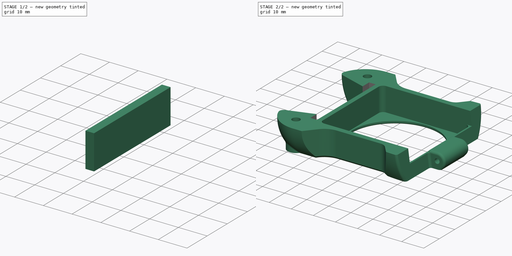
[diagram: build sequence overview — one tinted view per stage of 2, left to right]
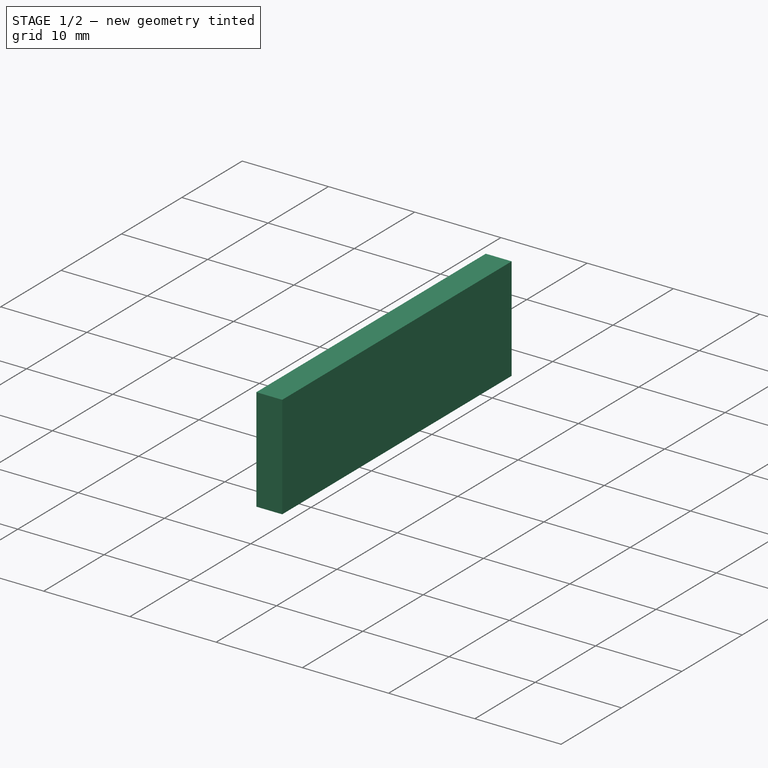
[diagram: stage 1 of 2 — iso view after this stage's code; geometry added in this stage tinted green]
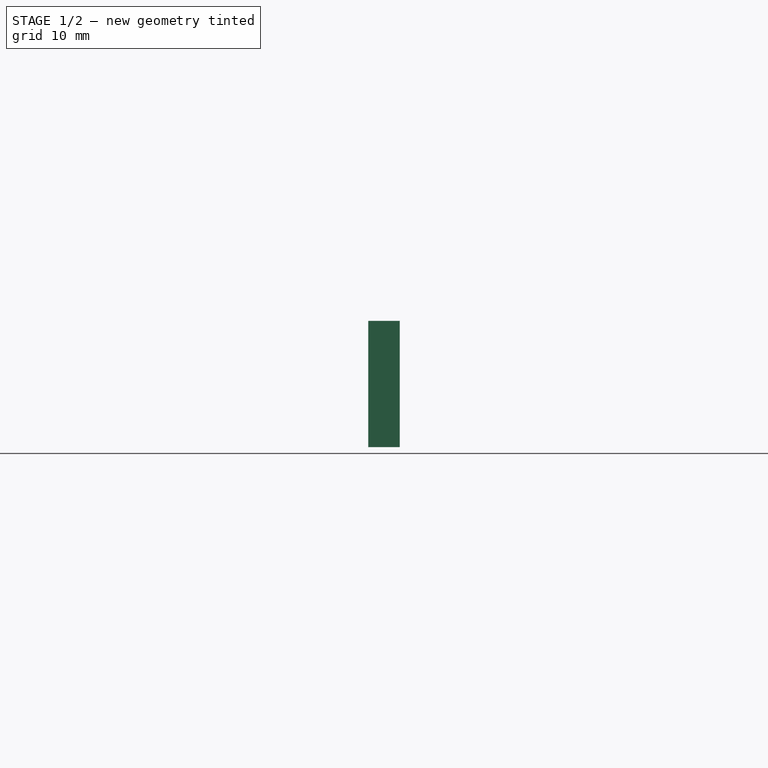
[diagram: stage 1 of 2 — front view after this stage's code; geometry added in this stage tinted green]
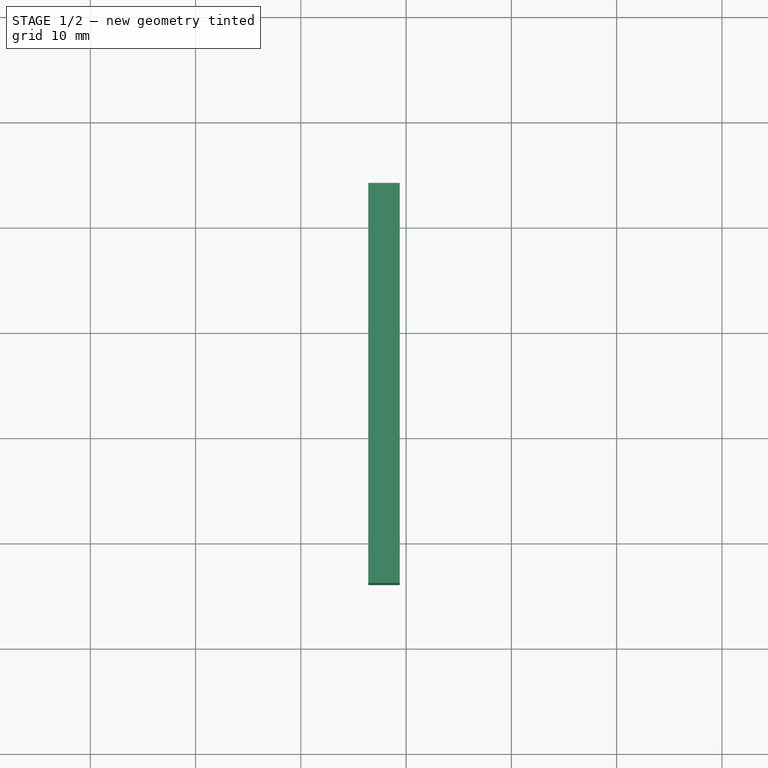
[diagram: stage 1 of 2 — top view after this stage's code; geometry added in this stage tinted green]
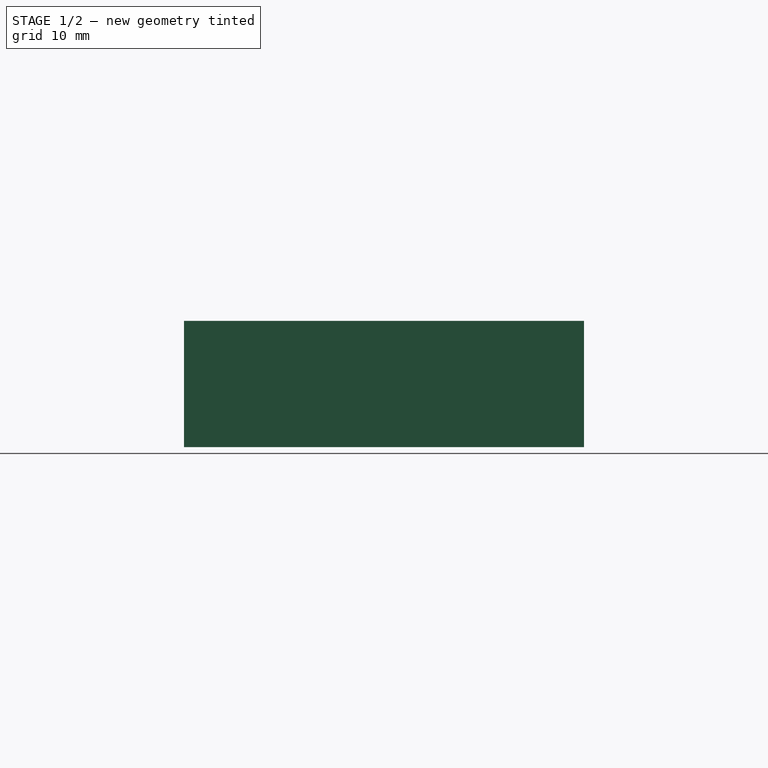
[diagram: stage 1 of 2 — right view after this stage's code; geometry added in this stage tinted green]
FCSTD DOCUMENT  (FreeCAD 2022.716R14555 (Git shallow))
Label: hotend_fan_mount
License: All rights reserved
LicenseURL: http://en.wikipedia.org/wiki/All_rights_reserved
objects: Part::Feature×1, PartDesign::Plane×1, Part::SubShapeBinder×1, Sketcher::SketchObject×1, PartDesign::Pad×1, PartDesign::Body×1, Part::Cut×1
note: 9 computed .brp shape members not serialized (recipe doc carries the construction recipe); baked Part::Feature solids carry a one-line shape summary decoded from their .brp

FEATURE [Part::Feature] Solid  label="hotend_fan_mount001 (Solid)001"
  TreeRank = 1
  shape: bbox 66.07 x 60.58 x 12 mm, 9914 faces (baked)
FEATURE [PartDesign::Plane] DatumPlane
  AttachmentSupport = -> [Solid]
  Length = 159.534
  MapMode = 5
  MinimumLength = 10
  MinimumWidth = 10
  Placement = pos=(0,0,12) rot=(0,0,1;0rad)
  ResizeMode = 0
  Support = -> [Solid]
  TreeRank = 2
  Width = 145.29
FEATURE [Part::SubShapeBinder] Import  label="Import(DatumPlane)"
  BindCopyOnChange = 0
  BindMode = 0
  ClaimChildren = false
  Context = -> Body [Import.]
  FillStyle = 0
  Fuse = false
  MakeFace = false
  OffsetFill = false
  OffsetIntersection = false
  OffsetJoinType = 0
  OffsetOpenResult = false
  PartialLoad = false
  Relative = true
  Support = -> [DatumPlane]
  TreeRank = 13
  _Version = 8
FEATURE [Sketcher::SketchObject] Sketch
  ArcFitTolerance = 1e-06
  AttachmentSupport = -> [Import]
  FullyConstrained = true
  MapMode = 5
  Placement = pos=(0,0,12) rot=(0,0,1;0rad)
  Support = -> [Import]
  TreeRank = 14
  sketch-geometry (4):
    g0: LineSegment StartX=109.4 StartY=134.08 StartZ=0 EndX=106.4 EndY=134.08 EndZ=0
    g1: LineSegment StartX=106.4 StartY=134.08 StartZ=0 EndX=106.4 EndY=96.08 EndZ=0
    g2: LineSegment StartX=106.4 StartY=96.08 StartZ=0 EndX=109.4 EndY=96.08 EndZ=0
    g3: LineSegment StartX=109.4 StartY=96.08 StartZ=0 EndX=109.4 EndY=134.08 EndZ=0
  constraints (12):
    c: Coincident(g0,g1)
    c: Coincident(g1,g2)
    c: Coincident(g2,g3)
    c: Coincident(g3,g0)
    c: Horizontal(g0)
    c: Horizontal(g2)
    c: Vertical(g1)
    c: Vertical(g3)
    c: DistanceX(g0,g0) = 3
    c: DistanceY(g1,g1) = 38
    c: DistanceX(g-1,g1) = 106.4
    c: DistanceY(g-1,g1) = 96.08
FEATURE [PartDesign::Pad] Pad
  AddSubType = 0
  AlongSketchNormal = false
  CheckUpToFaceLimits = true
  ClaimChildren = false
  Direction = (0,0,1)
  Fit = 0
  FitJoin = 0
  InnerFit = 0
  InnerFitJoin = 0
  InnerTaperAngle = 0
  InnerTaperAngleRev = 0
  Length = 12
  Length2 = 100
  Linearize = true
  NewSolid = false
  Profile = -> Sketch
  Refine = true
  Reversed = true
  Suppress = false
  TreeRank = 15
  Type = 0
  _ProfileBasedVersion = 1
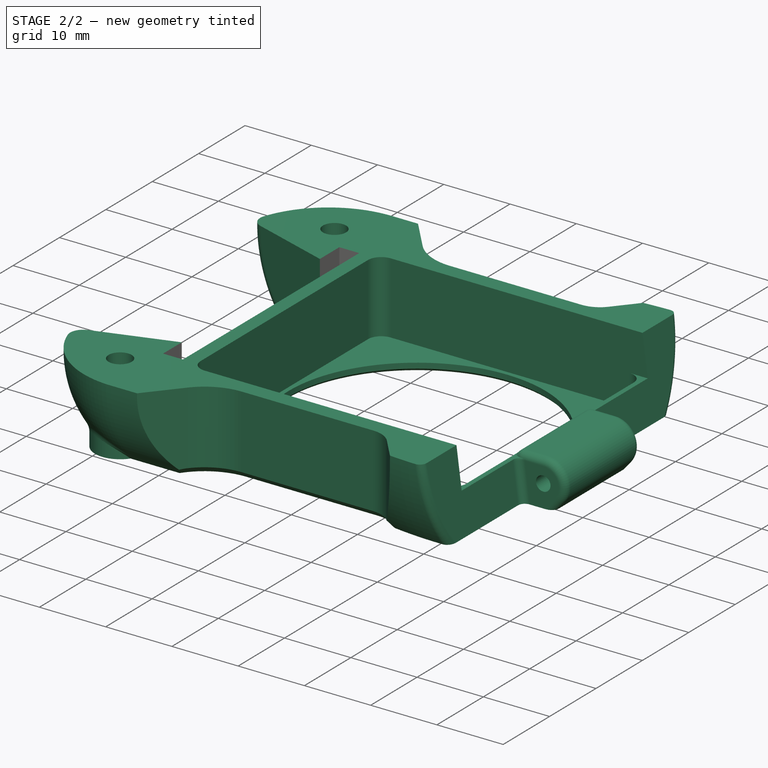
[diagram: stage 2 of 2 — iso view after this stage's code; geometry added in this stage tinted green]
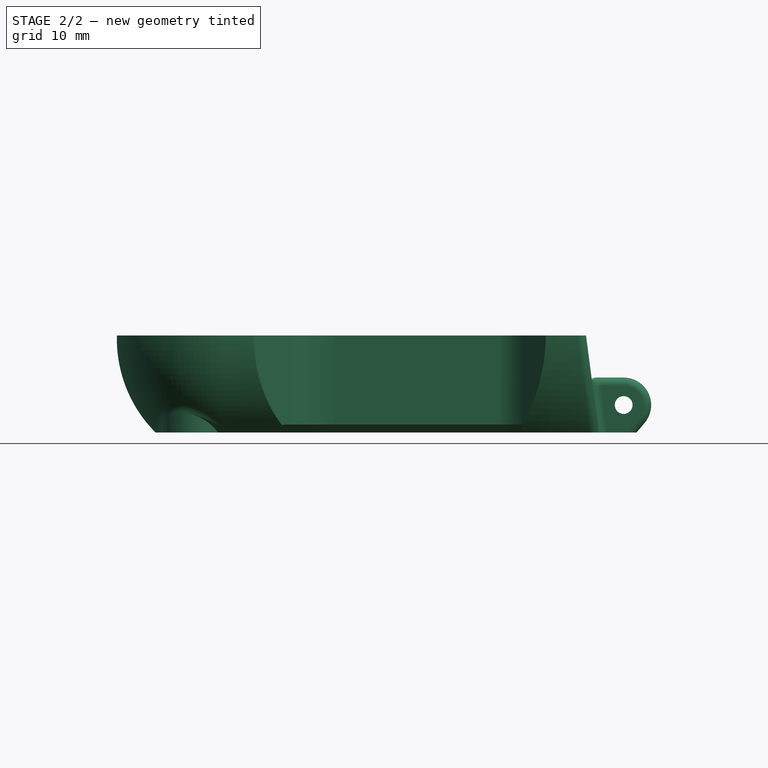
[diagram: stage 2 of 2 — front view after this stage's code; geometry added in this stage tinted green]
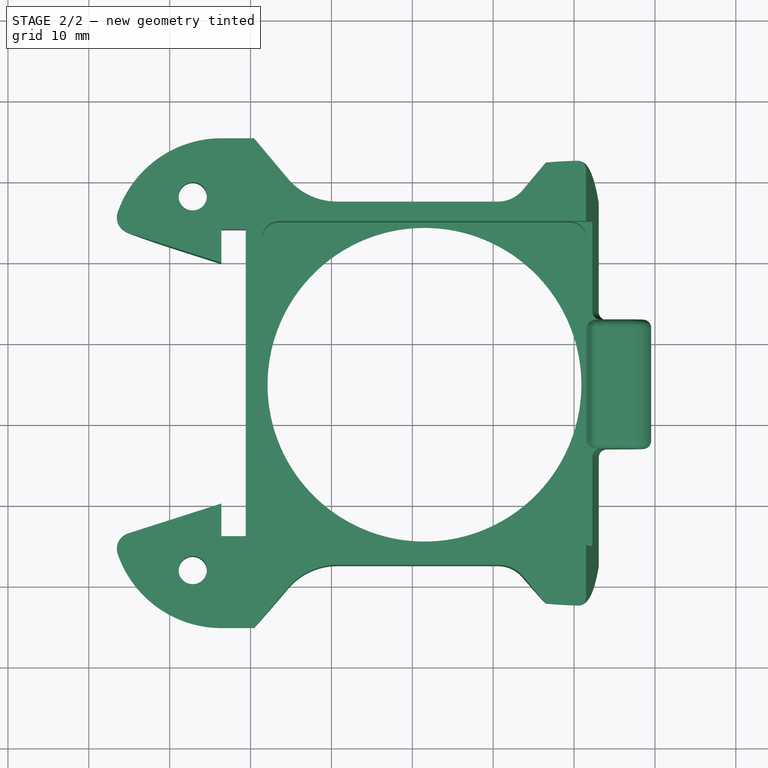
[diagram: stage 2 of 2 — top view after this stage's code; geometry added in this stage tinted green]
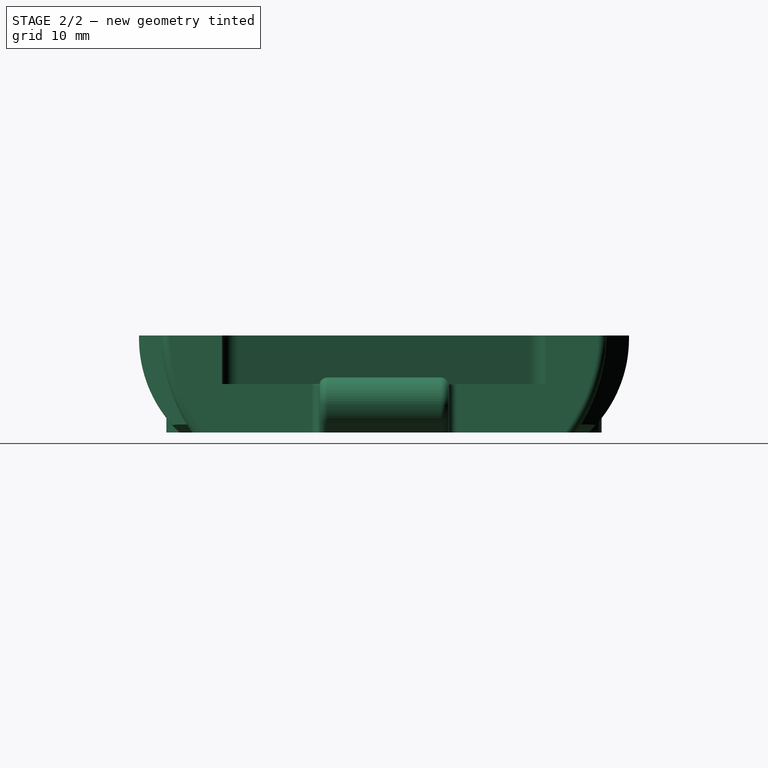
[diagram: stage 2 of 2 — right view after this stage's code; geometry added in this stage tinted green]
FEATURE [PartDesign::Body] Body
  AutoGroupSolids = false
  ClaimAllChildren = false
  ExportMode = 0
  Group = -> [Import,Sketch,Pad]
  Origin = -> Origin
  Tip = -> Pad
  TreeRank = 12
  _ExportChildren = -> [Import,Pad]
  _GroupVersion = 1
FEATURE [Part::Cut] Cut
  Base = -> Solid
  Refine = true
  Tool = -> Body
  TreeRank = 16
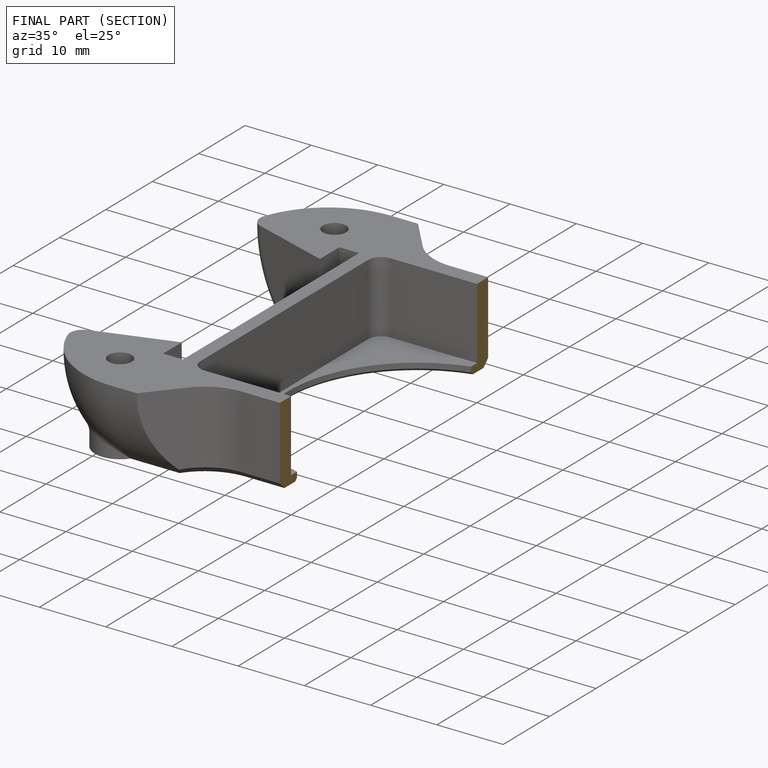
[diagram: finished part — half-section view (interior)]
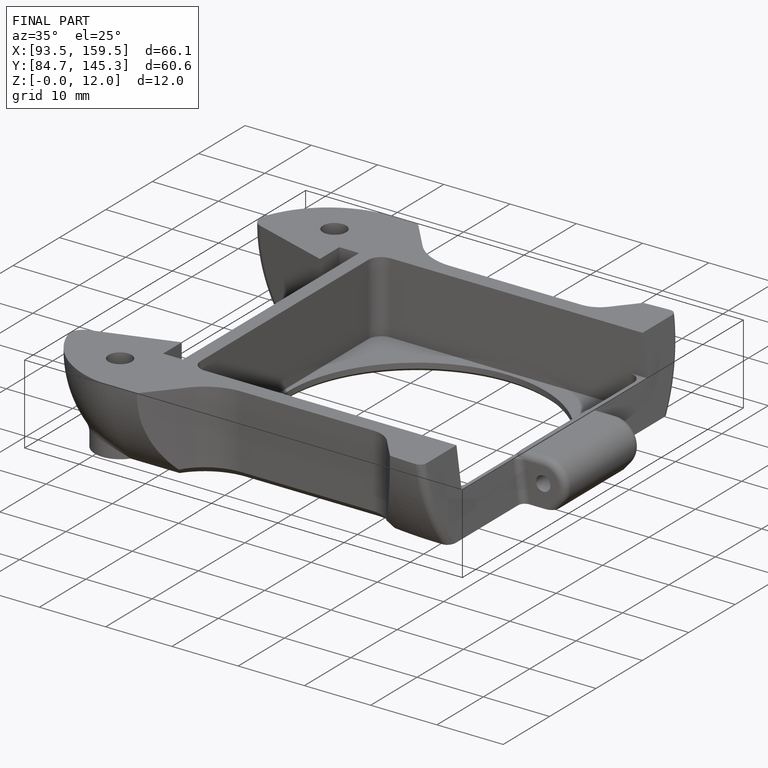
[diagram: finished part — iso view with bounding-box wireframe]
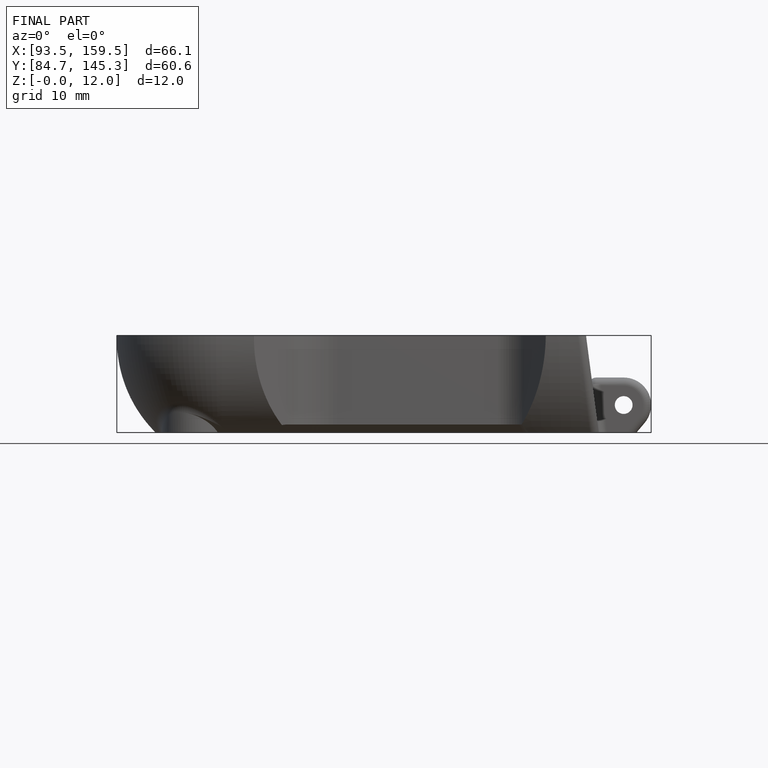
[diagram: finished part — front view with bounding-box wireframe]
